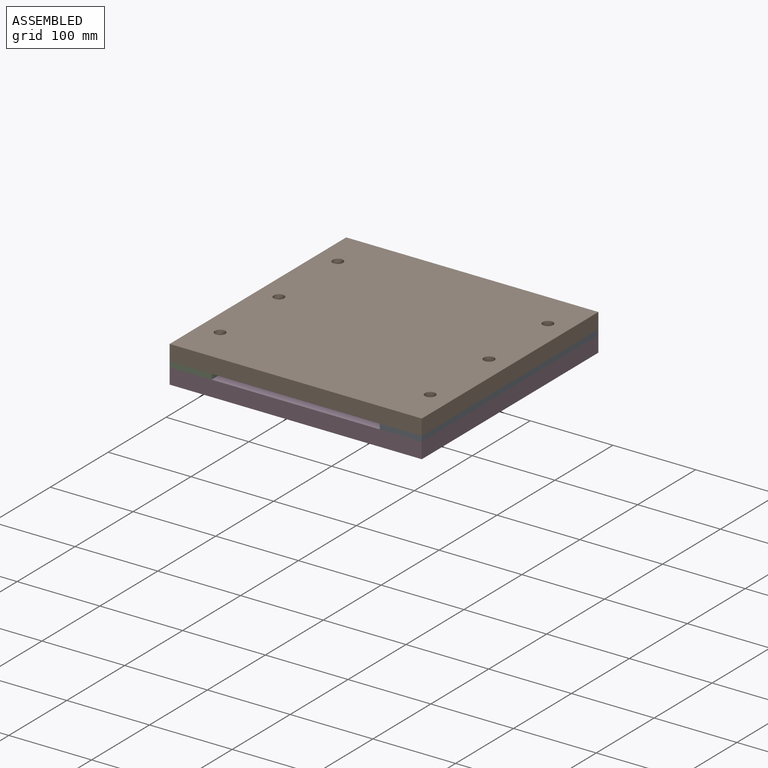
[diagram: assembled view]
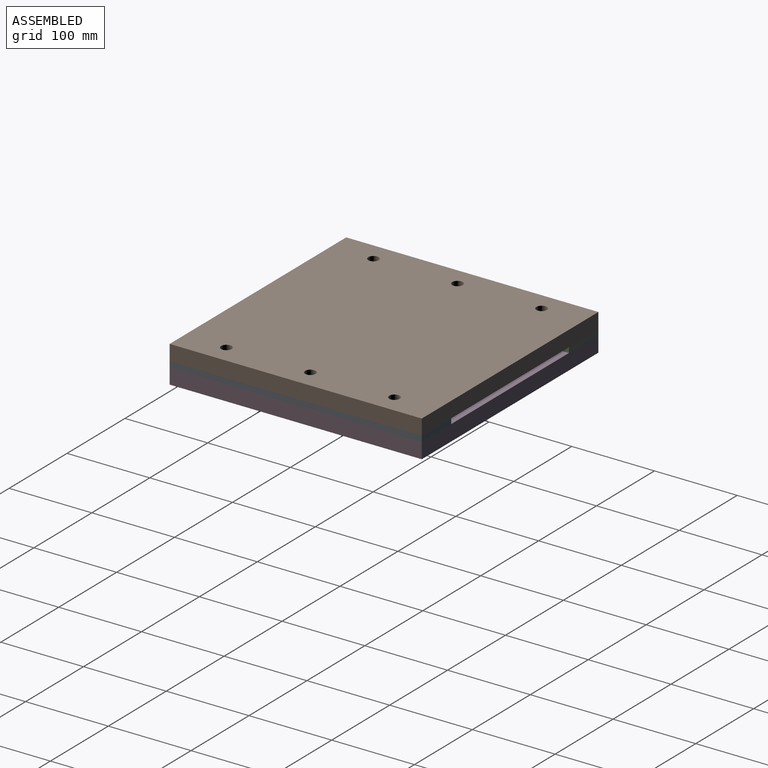
[diagram: assembled view, second angle]
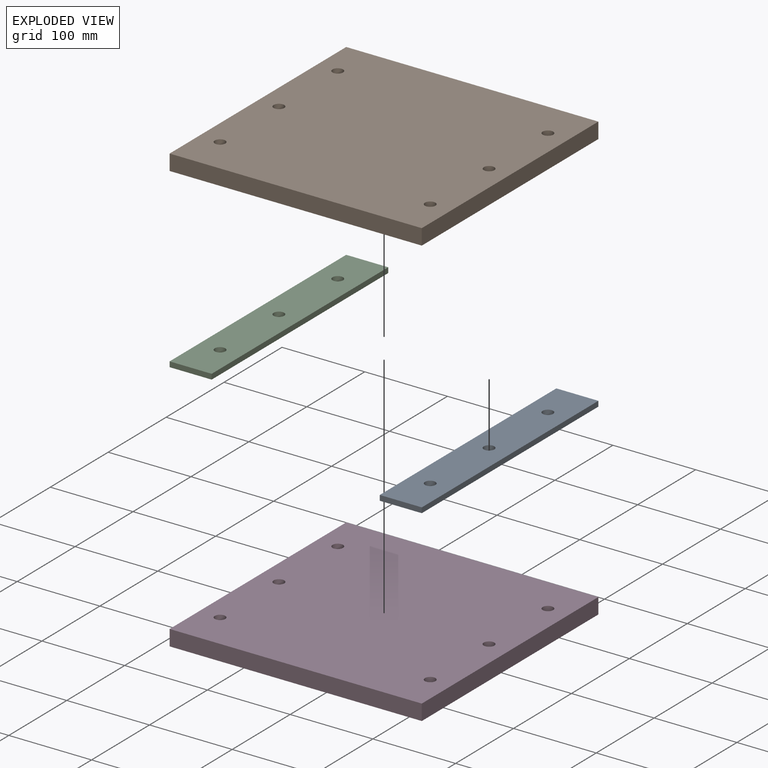
[diagram: exploded view]
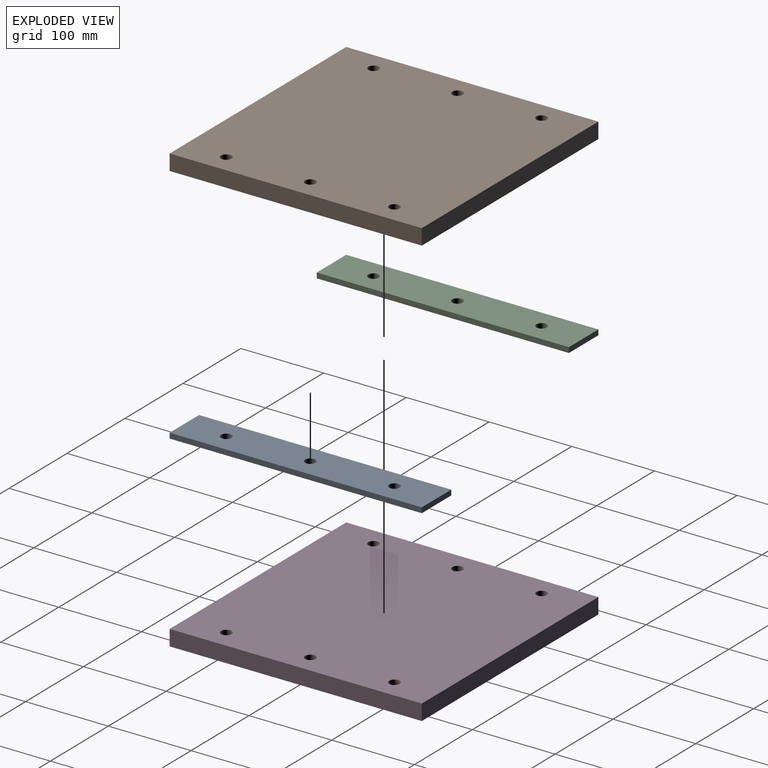
[diagram: exploded view, second angle]
ASSEMBLY  parts=4 mates=3
PART A: 9 faces, bbox 50.8x304.8x6.4 mm
  f0: plane 50.8x6.35mm, normal (0,-1,0), area 322.6mm2, adj f1,f6,f7,f8
  f1: plane 304.8x6.35mm, normal (1,0,0), area 1935.5mm2, adj f0,f2,f7,f8
  f2: plane 50.8x6.35mm, normal (0,1,0), area 322.6mm2, adj f1,f6,f7,f8
  f3: cylinder r=6.35mm len=12.7mm, axis (0,0,-1), area 253.4mm2, adj f7,f8
  f4: cylinder r=6.35mm len=12.7mm, axis (0,0,-1), area 253.4mm2, adj f7,f8
  f5: cylinder r=6.35mm len=12.7mm, axis (0,0,-1), area 253.4mm2, adj f7,f8
  f6: plane 304.8x6.35mm, normal (-1,0,0), area 1935.5mm2, adj f0,f2,f7,f8
  f7: plane 304.8x50.8mm, normal (0,0,1), area 15103.8mm2, adj f0,f1,f2,f3,f4,f5,f6
  f8: plane 304.8x50.8mm, normal (0,0,-1), area 15103.8mm2, adj f0,f1,f2,f3,f4,f5,f6
PART B: 12 faces, bbox 304.8x304.8x19.1 mm
  f0: plane 304.8x19.05mm, normal (0,-1,0), area 5806.4mm2, adj f1,f9,f10,f11
  f1: plane 304.8x19.05mm, normal (1,0,0), area 5806.4mm2, adj f0,f2,f10,f11
  f2: plane 304.8x19.05mm, normal (0,1,0), area 5806.4mm2, adj f1,f9,f10,f11
  f3: cylinder r=6.35mm len=19.05mm, axis (0,0,-1), area 760.1mm2, adj f10,f11
  f4: cylinder r=6.35mm len=19.05mm, axis (0,0,-1), area 760.1mm2, adj f10,f11
  f5: cylinder r=6.35mm len=19.05mm, axis (0,0,-1), area 760.1mm2, adj f10,f11
  f6: cylinder r=6.35mm len=19.05mm, axis (0,0,-1), area 760.1mm2, adj f10,f11
  f7: cylinder r=6.35mm len=19.05mm, axis (0,0,-1), area 760.1mm2, adj f10,f11
  f8: cylinder r=6.35mm len=19.05mm, axis (0,0,-1), area 760.1mm2, adj f10,f11
  f9: plane 304.8x19.05mm, normal (-1,0,0), area 5806.4mm2, adj f0,f2,f10,f11
  f10: plane 304.8x304.8mm, normal (0,0,1), area 92143mm2, adj f0,f1,f2,f3,f4,f5,f6,f7
  f11: plane 304.8x304.8mm, normal (0,0,-1), area 92143mm2, adj f0,f1,f2,f3,f4,f5,f6,f7
PART C: same geometry as A
PART D: same geometry as B
PLACE A t=(198.27,3.11,-3.17)mm
PLACE B t=(71.27,3.11,3.18)mm
PLACE C t=(-55.73,3.11,-3.17)mm
PLACE D t=(71.27,3.11,-22.22)mm
MATE cylindrical D.f8 <-> A.f5  axis (0,0,1) through (198.27,104.71,-3.17)mm
MATE cylindrical C.f5 <-> D.f3  axis (0,0,-1) through (-55.73,104.71,-3.17)mm
MATE cylindrical A.f5 <-> B.f8  axis (0,0,1) through (198.27,104.71,3.18)mm
